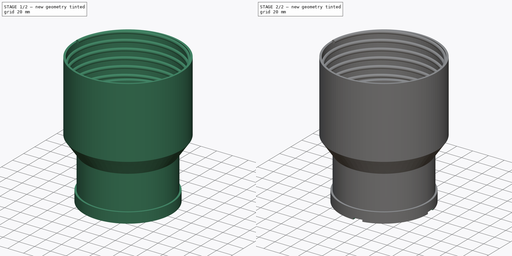
[diagram: build sequence overview — one tinted view per stage of 2, left to right]
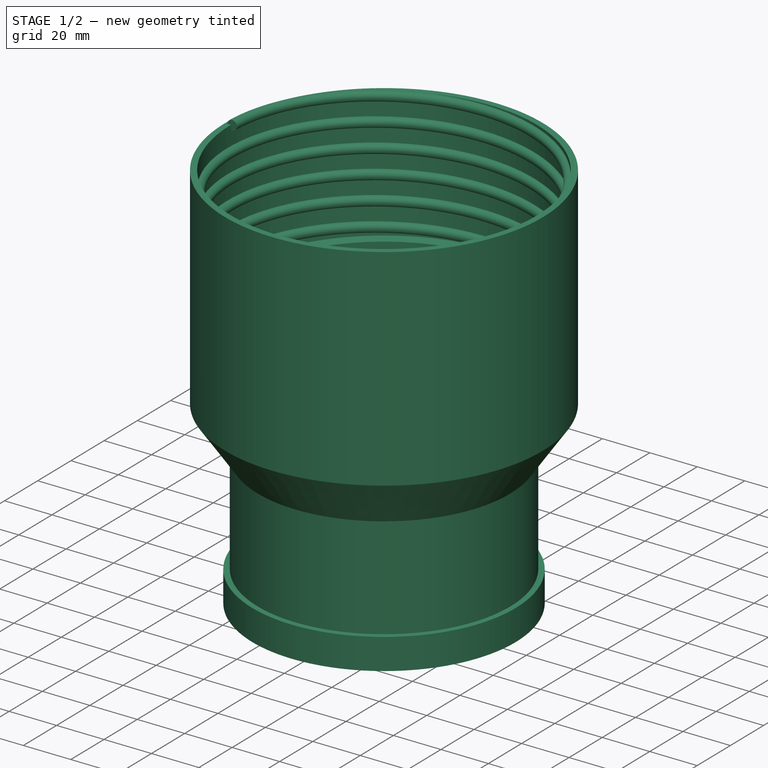
[diagram: stage 1 of 2 — iso view after this stage's code; geometry added in this stage tinted green]
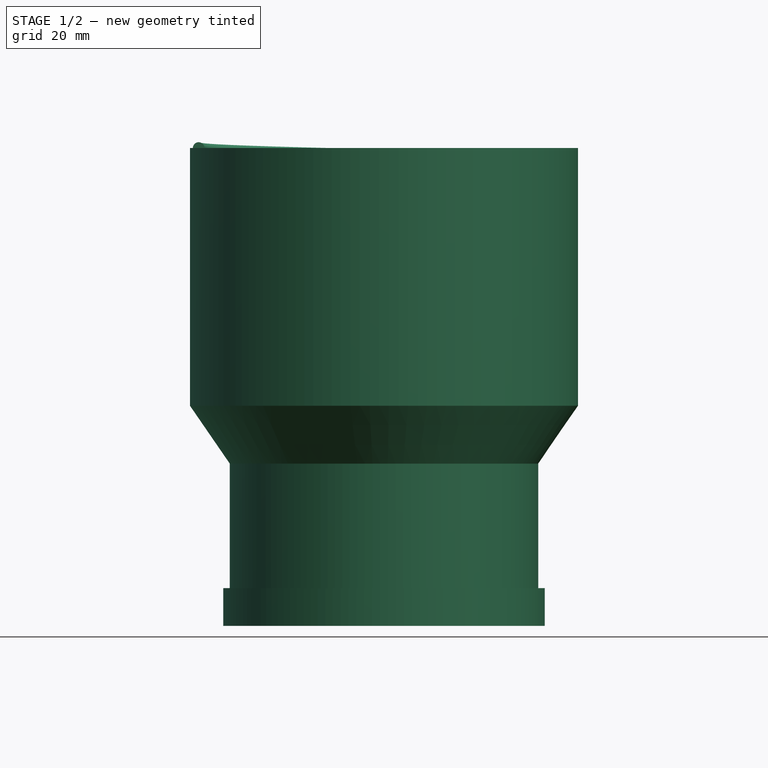
[diagram: stage 1 of 2 — front view after this stage's code; geometry added in this stage tinted green]
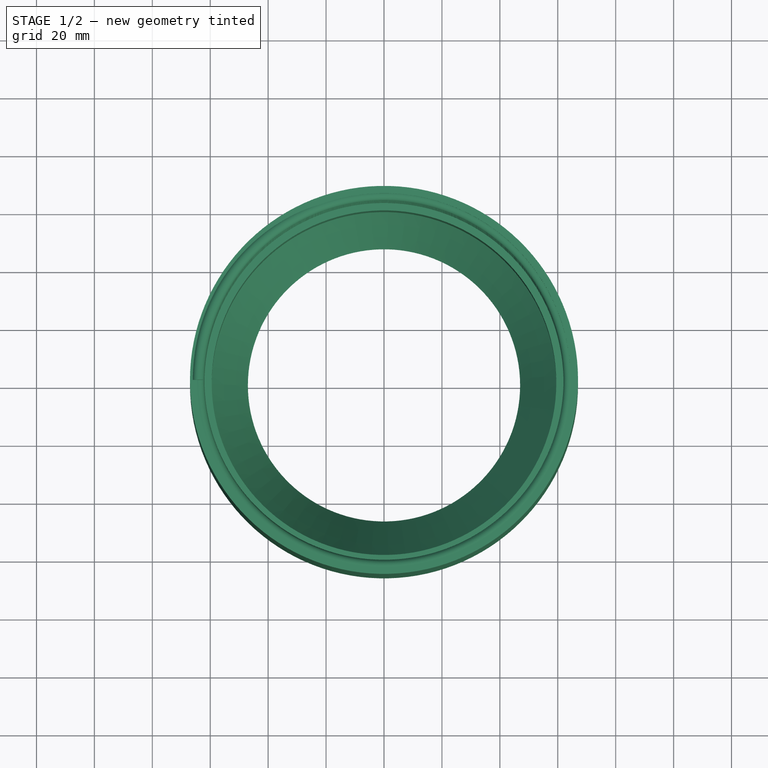
[diagram: stage 1 of 2 — top view after this stage's code; geometry added in this stage tinted green]
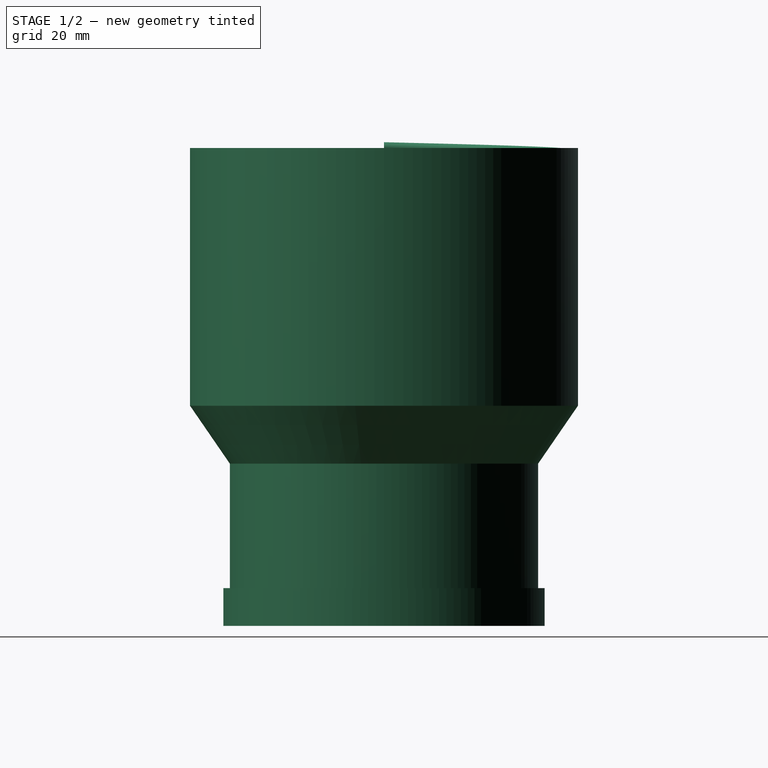
[diagram: stage 1 of 2 — right view after this stage's code; geometry added in this stage tinted green]
FCSTD DOCUMENT  (FreeCAD 0.19R14555 (Git shallow))
Label: Mark_1
License: All rights reserved
LicenseURL: http://en.wikipedia.org/wiki/All_rights_reserved
objects: Sketcher::SketchObject×3, PartDesign::Body×2, Spreadsheet::Sheet×1, PartDesign::Revolution×1, PartDesign::Pocket×1, PartDesign::PolarPattern×1, PartDesign::AdditiveHelix×1
note: 12 computed .brp shape members not serialized (recipe doc carries the construction recipe); baked Part::Feature solids carry a one-line shape summary decoded from their .brp

FEATURE [Spreadsheet::Sheet] Spreadsheet
  cells = A1=Section A; D1=Section B; A2=Thickness; B2(A_Thickness)=2.25; D2=Thickness; E2(B_Thickness)=2.5; A3=HeadLength; B3(A_HeadLength)=13; D3=ThreadedBodyLength; E3(B_ThreadedBodyLength)=55; A4=BodyLength; B4(A_BodyLength)=52; D4=HeadLength; E4(B_HeadLength)=34; A5=ChannelLength; B5(A_ChannelLength)=8; D5=InnerDiameter; E5(B_InnerDiameter)=129; A6=ChannelDepth; B6(A_ChannelDepth)=3.5; D6=ThreadPitch; E6(B_ThreadPitch)=10; A7=LipThickness; B7(A_LipThickness)=2; D7=ThreadZOffset; E7(B_ThreadZOffset)==TotalLength - B_ThreadedBodyLength; A8=InnerDiameter; B8(A_InnerDiameter)=102; D8=ThreadHelixRadius; E8(B_ThreadHelixRadius)==B_InnerDiameter / 2 - B_Thickness + B_ThreadHeight; A9=RearLipLength; B9(A_RearLipLength)=4; D9=ThreadHeight; E9(B_ThreadHeight)=2; A10=CutoutWidth; B10(A_CutoutWidth)=10; A12=General; A13=TotalLength; B13(TotalLength)==A_BodyLength + A_RearLipLength + MiddleLength + B_HeadLength + B_ThreadedBodyLength; A14=MiddleLength; B14(MiddleLength)=20
FEATURE [Sketcher::SketchObject] Sketch
  FullyConstrained = true
  MapMode = 5
  Placement = pos=(0,0,0) rot=(1,0,0;1.5708rad)
  Support = -> [XZ_Plane]
  expr: Constraints[48] = Spreadsheet.B_InnerDiameter / 2
  expr: Constraints[44] = Spreadsheet.B_Thickness * 3
  expr: Constraints[20] = Spreadsheet.A_HeadLength
  expr: Constraints[45] = Spreadsheet.B_HeadLength
  expr: Constraints[18] = Spreadsheet.A_LipThickness
  expr: Constraints[25] = Spreadsheet.A_InnerDiameter / 2
  expr: Constraints[28] = Spreadsheet.A_Thickness
  expr: Constraints[24] = Spreadsheet.A_BodyLength
  expr: Constraints[47] = Spreadsheet.B_Thickness
  expr: Constraints[46] = Spreadsheet.B_ThreadedBodyLength
  expr: Constraints[27] = Spreadsheet.A_RearLipLength
  expr: Constraints[22] = Spreadsheet.A_Thickness * 2
  expr: Constraints[55] = Spreadsheet.MiddleLength
  expr: Constraints[23] = Spreadsheet.A_ChannelDepth
  expr: Constraints[19] = Spreadsheet.A_ChannelLength
  sketch-geometry (19):
    g0: LineSegment StartX=-51 StartY=0 StartZ=0 EndX=-55.5 EndY=0 EndZ=0
    g1: LineSegment StartX=-55.5 StartY=0 StartZ=0 EndX=-55.5 EndY=13 EndZ=0
    g2: LineSegment StartX=-55.5 StartY=13 StartZ=0 EndX=-53.25 EndY=13 EndZ=0
    g3: LineSegment StartX=-53.25 StartY=13 StartZ=0 EndX=-53.25 EndY=52 EndZ=0
    g4: LineSegment StartX=-51 StartY=52 StartZ=0 EndX=-51 EndY=10 EndZ=0
    g5: LineSegment StartX=-51 StartY=10 StartZ=0 EndX=-54.5 EndY=10 EndZ=0
    g6: LineSegment StartX=-54.5 StartY=10 StartZ=0 EndX=-54.5 EndY=2 EndZ=0
    g7: LineSegment StartX=-54.5 StartY=2 StartZ=0 EndX=-51 EndY=2 EndZ=0
    g8: LineSegment StartX=-51 StartY=2 StartZ=0 EndX=-51 EndY=0 EndZ=0
    g9: LineSegment StartX=-53.25 StartY=56 StartZ=0 EndX=-53.25 EndY=52 EndZ=0
    g10: LineSegment StartX=-51 StartY=52 StartZ=0 EndX=-47 EndY=56 EndZ=0
    g11: LineSegment StartX=-67 StartY=76 StartZ=0 EndX=-67 EndY=110 EndZ=0
    g12: LineSegment StartX=-59.5 StartY=110 StartZ=0 EndX=-59.5 EndY=76 EndZ=0
    g13: LineSegment StartX=-64.5 StartY=110 StartZ=0 EndX=-64.5 EndY=165 EndZ=0
    g14: LineSegment StartX=-64.5 StartY=165 StartZ=0 EndX=-67 EndY=165 EndZ=0
    g15: LineSegment StartX=-67 StartY=165 StartZ=0 EndX=-67 EndY=110 EndZ=0
    g16: LineSegment StartX=-64.5 StartY=110 StartZ=0 EndX=-59.5 EndY=110 EndZ=0
    g17: LineSegment StartX=-67 StartY=76 StartZ=0 EndX=-53.25 EndY=56 EndZ=0
    g18: LineSegment StartX=-47 StartY=56 StartZ=0 EndX=-59.5 EndY=76 EndZ=0
  constraints (57):
    c: PointOnObject(g0,g-1)
    c: Horizontal(g0)
    c: Coincident(g0,g1)
    c: Vertical(g1)
    c: Coincident(g1,g2)
    c: Horizontal(g2)
    c: Coincident(g2,g3)
    c: Vertical(g3)
    c: Vertical(g4)
    c: Coincident(g4,g5)
    c: Horizontal(g5)
    c: Coincident(g5,g6)
    c: Vertical(g6)
    c: Coincident(g6,g7)
    c: Horizontal(g7)
    c: Coincident(g7,g8)
    c: Coincident(g8,g0)
    c: Vertical(g8)
    c: DistanceY(g8,g8) = 2
    c: DistanceY(g6,g6) = 8
    c: DistanceY(g1,g1) = 13
    c: Vertical(g4,g7)
    c: DistanceX(g0,g0) = 4.5
    c: DistanceX(g5,g5) = 3.5
    c: DistanceY(g-1,g4) = 52
    c: DistanceX(g4,g-1) = 51
    c: Vertical(g9)
    c: DistanceY(g9,g9) = 4
    c: DistanceX(g3,g4) = 2.25
    c: Coincident(g9,g3)
    c: Horizontal(g3,g4)
    c: Coincident(g10,g4)
    c: Angle(g4,g10,g4) = 2.35619
    c: Vertical(g11)
    c: Vertical(g12)
    c: Coincident(g13,g14)
    c: Coincident(g14,g15)
    c: Horizontal(g14)
    c: Vertical(g13)
    c: Vertical(g15)
    c: Coincident(g16,g13)
    c: Coincident(g16,g12)
    c: Horizontal(g16)
    c: Coincident(g15,g11)
    c: DistanceX(g11,g12) = 7.5
    c: DistanceY(g12,g12) = 34
    c: DistanceY(g13,g13) = 55
    c: DistanceX(g14,g14) = 2.5
    c: DistanceX(g13,g-1) = 64.5
    c: Coincident(g17,g11)
    c: Coincident(g17,g9)
    c: Coincident(g18,g10)
    c: Coincident(g18,g12)
    c: Horizontal(g9,g10)
    c: Horizontal(g11,g12)
    c: DistanceY(g9,g11) = 20
    c: Horizontal(g13,g11)
FEATURE [PartDesign::Revolution] Revolution
  Angle = 360
  Axis = (0,-2e-16,1)
  Base = (0,0,0)
  Placement = pos=(0,0,0) rot=(1,0,0;1.5708rad)
  Profile = -> Sketch
  ReferenceAxis = -> Sketch [V_Axis]
FEATURE [PartDesign::Body] Body  label="Shell"
  Group = -> [Sketch,Revolution,Sketch001,Pocket,PolarPattern]
  Origin = -> Origin
  Tip = -> PolarPattern
FEATURE [Sketcher::SketchObject] Sketch002
  FullyConstrained = true
  MapMode = 5
  Placement = pos=(0,0,0) rot=(1,0,0;1.5708rad)
  Support = -> [XZ_Plane001]
  expr: Constraints[2] = Spreadsheet.B_ThreadHeight
  expr: Constraints[1] = Spreadsheet.B_ThreadZOffset
  expr: Constraints[0] = Spreadsheet.B_ThreadHelixRadius
  sketch-geometry (1):
    g0: Circle CenterX=64 CenterY=110 CenterZ=0 NormalX=0 NormalY=0 NormalZ=1 AngleXU=0 Radius=2
  constraints (3):
    c: DistanceX(g-1,g0) = 64
    c: DistanceY(g-1,g0) = 110
    c: Radius(g0) = 2
FEATURE [PartDesign::AdditiveHelix] AdditiveHelix
  Angle = 0
  Axis = (0,2e-16,1)
  Base = (0,0,0)
  HasBeenEdited = true
  Height = 55
  LeftHanded = false
  Mode = 0
  Outside = false
  Pitch = 10
  Placement = pos=(0,0,0) rot=(1,0,0;1.5708rad)
  Profile = -> Sketch002
  ReferenceAxis = -> Sketch002 [V_Axis]
  Turns = 5.5
  expr: Height = Spreadsheet.B_ThreadedBodyLength
  expr: Pitch = Spreadsheet.B_ThreadPitch
FEATURE [PartDesign::Body] Body001  label="AC_HoseAdapter"
  Group = -> [Sketch002,AdditiveHelix]
  Origin = -> Origin001
  Tip = -> AdditiveHelix
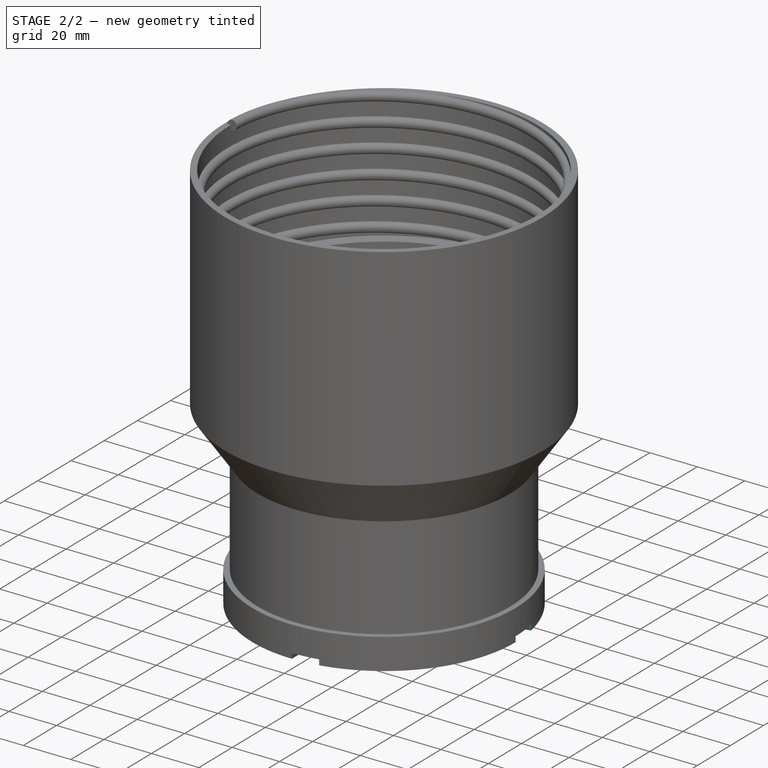
[diagram: stage 2 of 2 — iso view after this stage's code; geometry added in this stage tinted green]
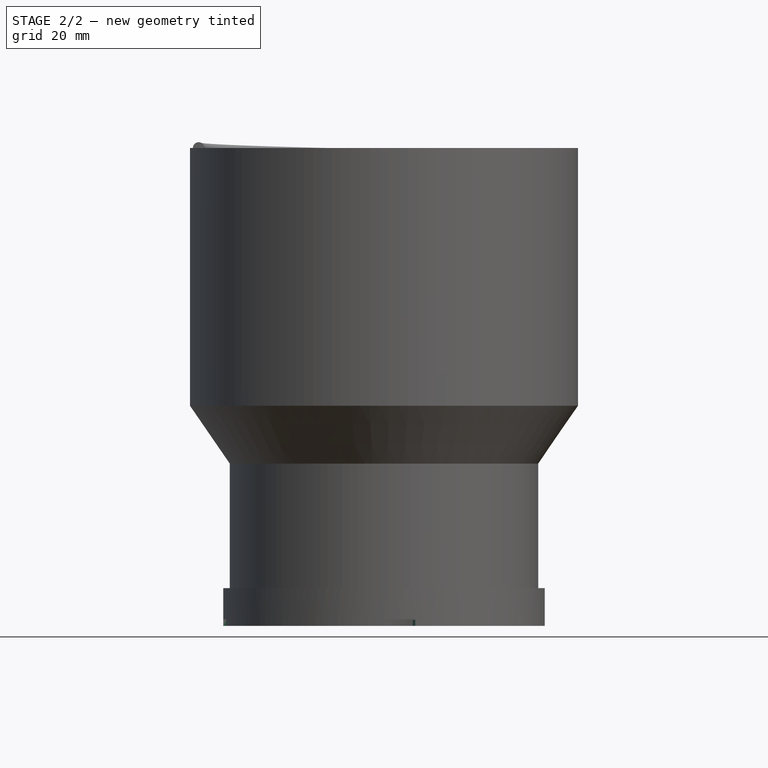
[diagram: stage 2 of 2 — front view after this stage's code; geometry added in this stage tinted green]
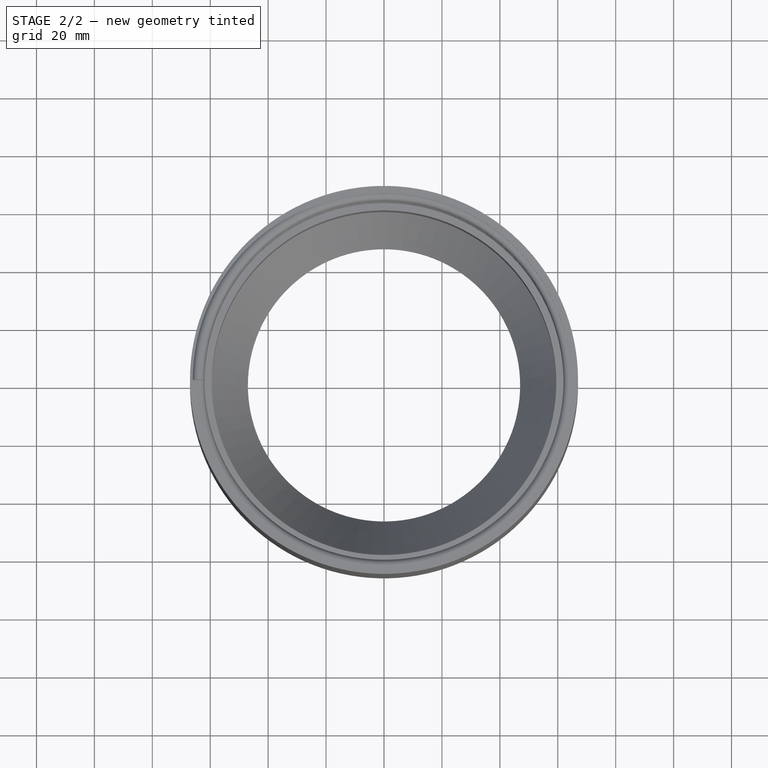
[diagram: stage 2 of 2 — top view after this stage's code; geometry added in this stage tinted green]
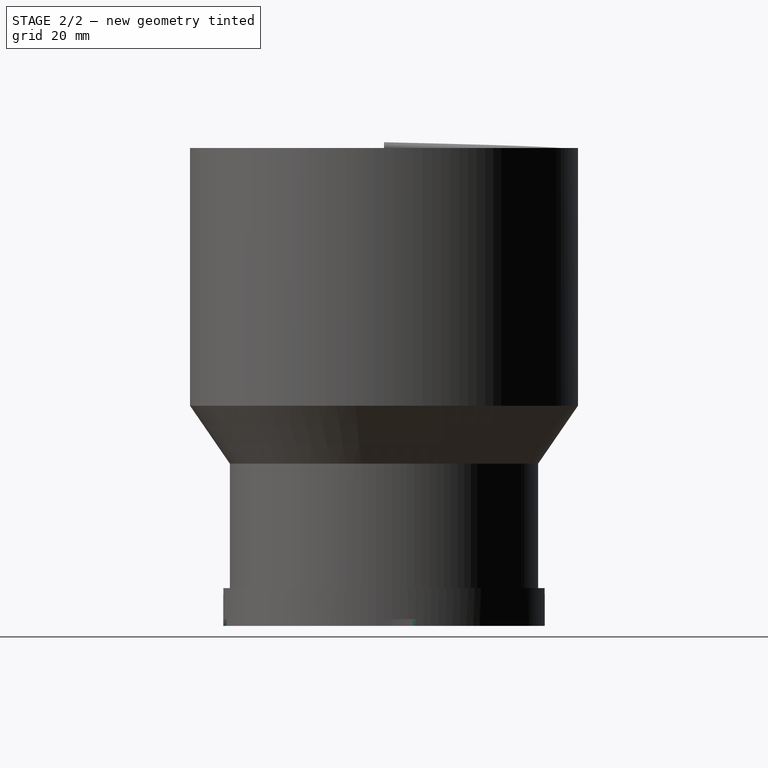
[diagram: stage 2 of 2 — right view after this stage's code; geometry added in this stage tinted green]
FEATURE [Sketcher::SketchObject] Sketch001
  FullyConstrained = true
  MapMode = 5
  Placement = pos=(0,0,0) rot=(1,0,0;3.14159rad)
  Support = -> [Revolution]
  expr: Constraints[2] = Spreadsheet.A_CutoutWidth * 2 / Spreadsheet.A_InnerDiameter * 180 / 3.1459
  expr: Constraints[3] = Spreadsheet.A_InnerDiameter / 2
  expr: Constraints[6] = Spreadsheet.A_CutoutWidth * 2 / Spreadsheet.A_InnerDiameter * 180 / 3.1459
  expr: Constraints[7] = Spreadsheet.A_InnerDiameter / 2 + 2 * Spreadsheet.A_Thickness
  sketch-geometry (4):
    g0: ArcOfCircle CenterX=0 CenterY=0 CenterZ=0 NormalX=0 NormalY=0 NormalZ=1 AngleXU=0 Radius=51 StartAngle=1.37499 EndAngle=1.5708
    g1: ArcOfCircle CenterX=0 CenterY=0 CenterZ=0 NormalX=0 NormalY=0 NormalZ=1 AngleXU=0 Radius=55.5 StartAngle=1.37499 EndAngle=1.5708
    g2: LineSegment StartX=10.7981 StartY=54.4394 StartZ=0 EndX=9.92262 EndY=50.0254 EndZ=0
    g3: LineSegment StartX=3.4e-15 StartY=55.5 StartZ=0 EndX=3.1e-15 EndY=51 EndZ=0
  constraints (12):
    c: Coincident(g0,g-1)
    c: PointOnObject(g0,g-2)
    c: Angle(g0) = 0.19581
    c: DistanceY(g0,g0) = 51
    c: Coincident(g1,g0)
    c: PointOnObject(g1,g-2)
    c: Angle(g1) = 0.19581
    c: DistanceY(g0,g1) = 55.5
    c: Coincident(g2,g1)
    c: Coincident(g2,g0)
    c: Coincident(g3,g1)
    c: Coincident(g3,g0)
FEATURE [PartDesign::Pocket] Pocket
  BaseFeature = -> Revolution
  Length = 2.25
  Length2 = 100
  Placement = pos=(0,0,0) rot=(1,0,0;1.5708rad)
  Profile = -> Sketch001
  Type = 0
  expr: Length = Spreadsheet.A_Thickness
FEATURE [PartDesign::PolarPattern] PolarPattern
  Angle = 360
  Axis = -> Sketch001 [N_Axis]
  BaseFeature = -> Pocket
  Occurrences = 4
  Originals = -> [Pocket]
  Placement = pos=(0,0,0) rot=(1,0,0;1.5708rad)
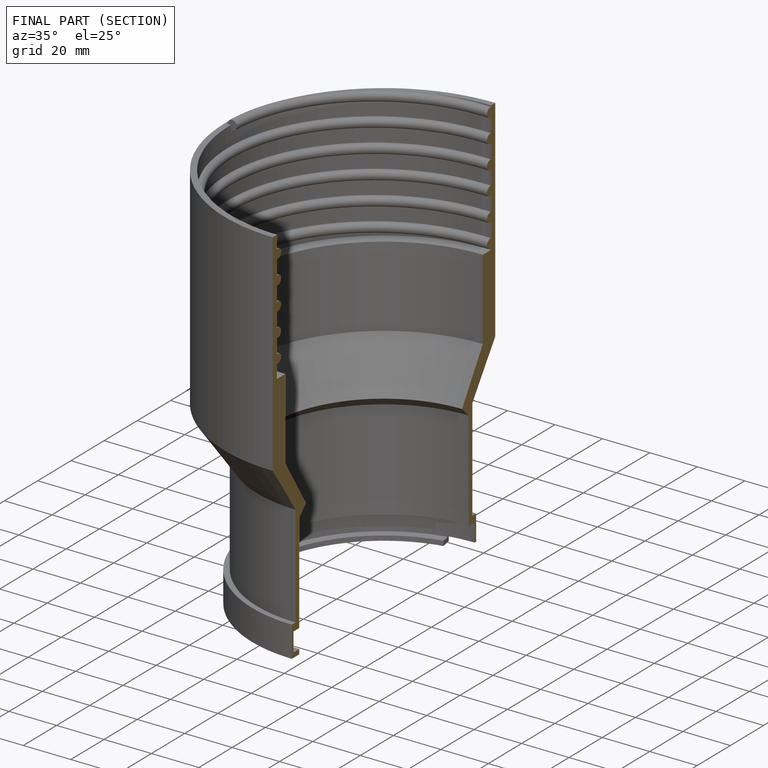
[diagram: finished part — half-section view (interior)]
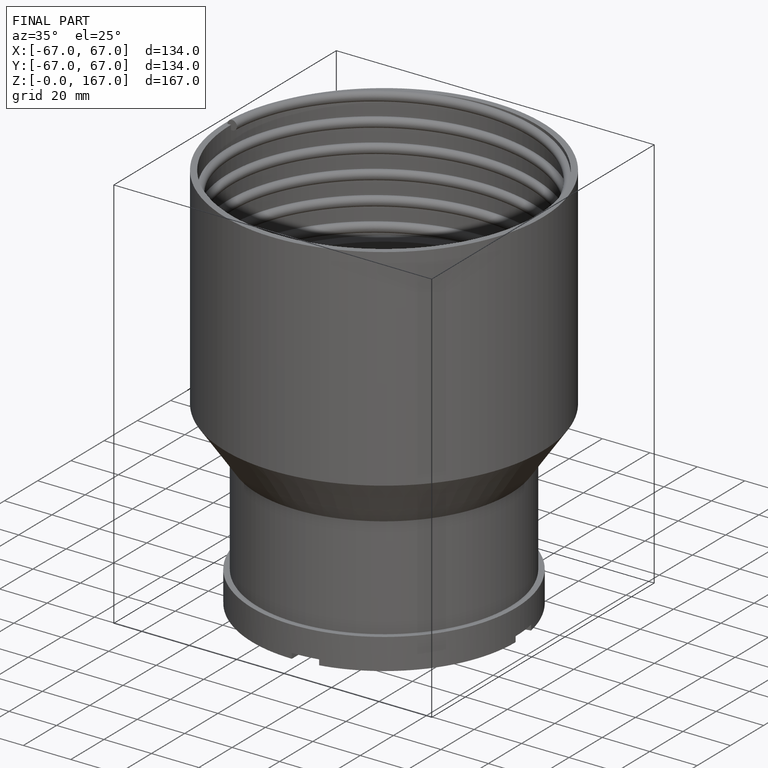
[diagram: finished part — iso view with bounding-box wireframe]
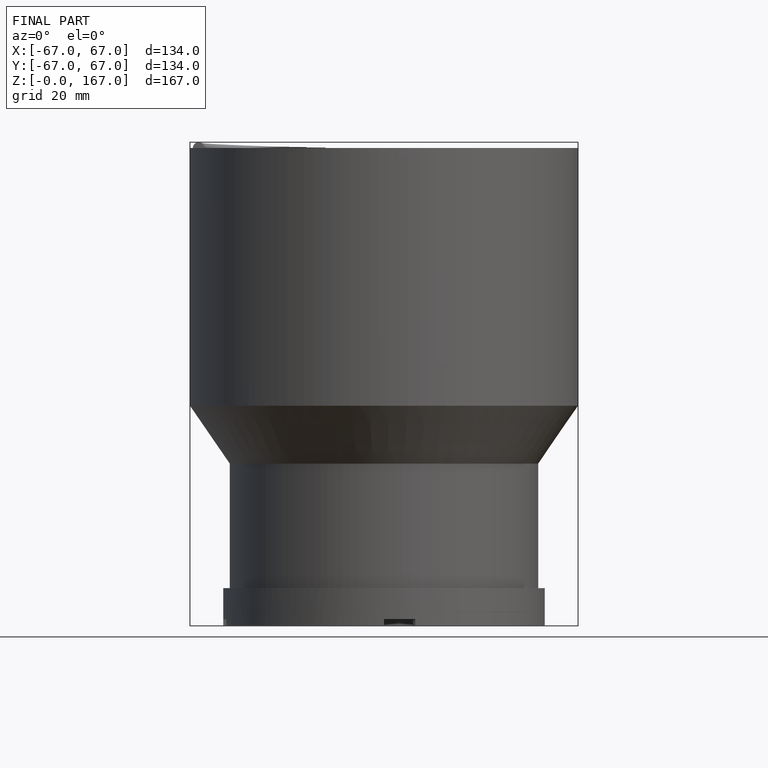
[diagram: finished part — front view with bounding-box wireframe]
